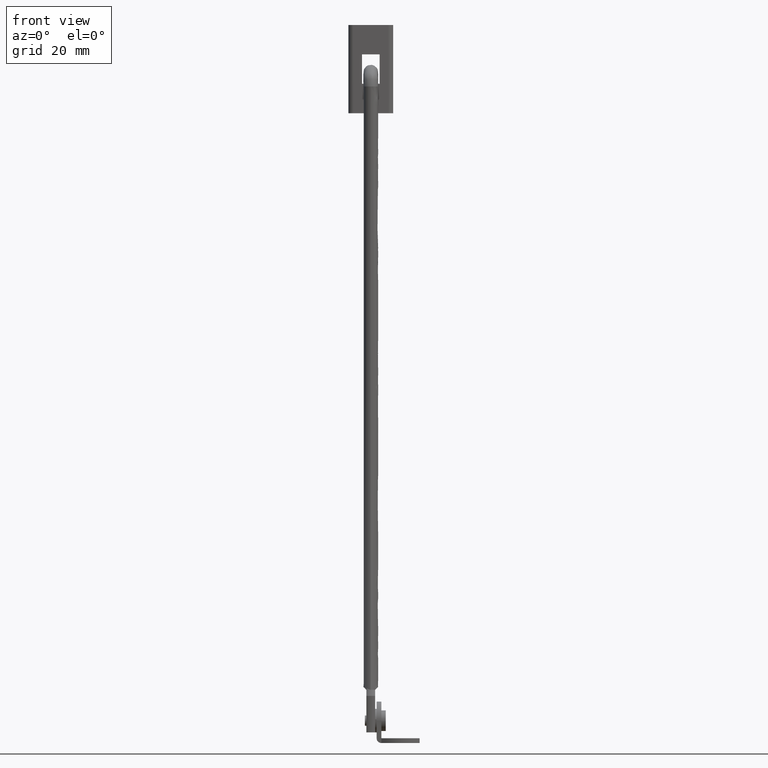
[diagram: clean part render]
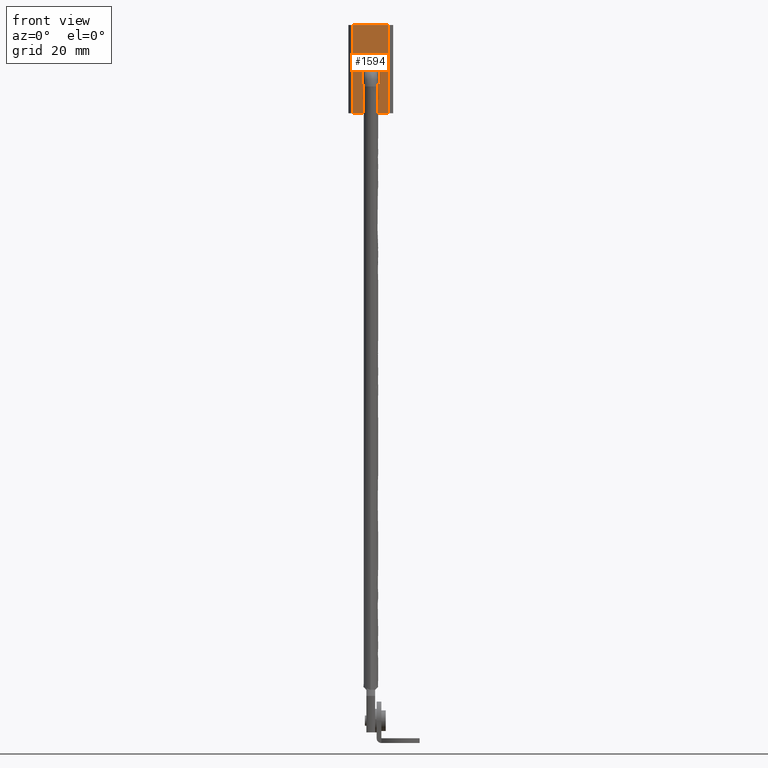
[diagram: same view with one face highlighted and labeled with its STEP entity id]
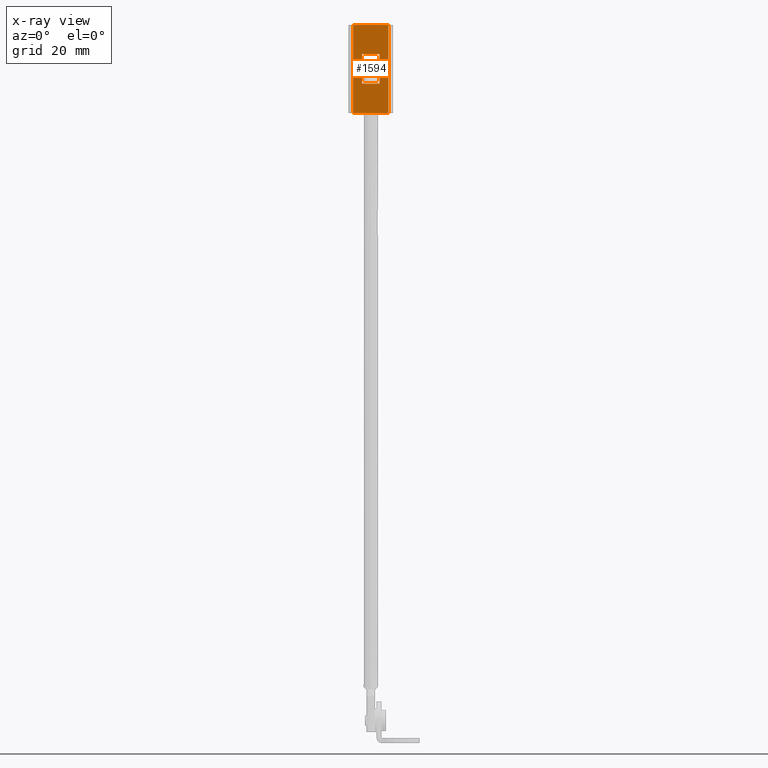
[diagram: x-ray of the same camera — body ghosted, the highlighted face saturated]
A machine part, front view. The second image highlights one B-rep face of the part: STEP entity #1594.
The next image is the same camera in x-ray: the body ghosted, the highlighted face saturated — about 0% of this face is hidden behind the body in this view.
In plain terms, the highlighted face is a freeform B-spline surface patch.
Its self-contained STEP definition (entity closure, byte-faithful):
#1154=CARTESIAN_POINT('',(-13.099990999999800,2.499999999999885,236.662185999999990));
#1155=VERTEX_POINT('',#1154);
#1156=CARTESIAN_POINT('',(-13.099990999999800,2.499999999999945,226.662185999999990));
#1157=VERTEX_POINT('',#1156);
#1158=CARTESIAN_POINT('',(-13.099990999999800,2.499999999999885,236.662185999999990));
#1159=CARTESIAN_POINT('',(-13.099990999999800,2.499999999999945,226.662185999999990));
#1160=QUASI_UNIFORM_CURVE('',1,(#1158,#1159),.UNSPECIFIED.,.F.,.U.);
#1161=EDGE_CURVE('',#1155,#1157,#1160,.T.);
#1190=CARTESIAN_POINT('',(-7.099990999999790,2.499999999999945,236.662185999999990));
#1191=VERTEX_POINT('',#1190);
#1192=CARTESIAN_POINT('',(-7.099990999999790,2.499999999999945,236.662185999999990));
#1193=CARTESIAN_POINT('',(-13.099990999999800,2.499999999999885,236.662185999999990));
#1194=QUASI_UNIFORM_CURVE('',1,(#1192,#1193),.UNSPECIFIED.,.F.,.U.);
#1195=EDGE_CURVE('',#1191,#1155,#1194,.T.);
#1218=CARTESIAN_POINT('',(-7.099990999999790,2.499999999999945,226.662185999999990));
#1219=VERTEX_POINT('',#1218);
#1220=CARTESIAN_POINT('',(-7.099990999999790,2.499999999999945,226.662185999999990));
#1221=CARTESIAN_POINT('',(-7.099990999999790,2.499999999999945,236.662185999999990));
#1222=QUASI_UNIFORM_CURVE('',1,(#1220,#1221),.UNSPECIFIED.,.F.,.U.);
#1223=EDGE_CURVE('',#1219,#1191,#1222,.T.);
#1246=CARTESIAN_POINT('',(-13.099990999999800,2.499999999999945,226.662185999999990));
#1247=CARTESIAN_POINT('',(-7.099990999999790,2.499999999999945,226.662185999999990));
#1248=QUASI_UNIFORM_CURVE('',1,(#1246,#1247),.UNSPECIFIED.,.F.,.U.);
#1249=EDGE_CURVE('',#1157,#1219,#1248,.T.);
#1277=CARTESIAN_POINT('',(-4.099999999999885,2.499999999999885,216.662185999999990));
#1278=VERTEX_POINT('',#1277);
#1299=CARTESIAN_POINT('',(-4.099999999999885,2.499999999999885,246.662185999999990));
#1300=VERTEX_POINT('',#1299);
#1314=CARTESIAN_POINT('',(-4.099999999999885,2.499999999999885,216.662185999999990));
#1315=CARTESIAN_POINT('',(-4.099999999999885,2.499999999999885,246.662185999999990));
#1316=QUASI_UNIFORM_CURVE('',1,(#1314,#1315),.UNSPECIFIED.,.F.,.U.);
#1317=EDGE_CURVE('',#1278,#1300,#1316,.T.);
#1336=CARTESIAN_POINT('',(-16.099996999999899,2.499999999999885,216.662185999999990));
#1337=VERTEX_POINT('',#1336);
#1353=CARTESIAN_POINT('',(-16.099996999999899,2.499999999999885,246.662185999999990));
#1354=VERTEX_POINT('',#1353);
#1355=CARTESIAN_POINT('',(-16.099996999999899,2.499999999999885,246.662185999999990));
#1356=CARTESIAN_POINT('',(-16.099996999999899,2.499999999999885,216.662185999999990));
#1357=QUASI_UNIFORM_CURVE('',1,(#1355,#1356),.UNSPECIFIED.,.F.,.U.);
#1358=EDGE_CURVE('',#1354,#1337,#1357,.T.);
#1396=CARTESIAN_POINT('',(-16.099996999999899,2.499999999999885,246.662185999999990));
#1397=CARTESIAN_POINT('',(-4.099999999999885,2.499999999999885,246.662185999999990));
#1398=QUASI_UNIFORM_CURVE('',1,(#1396,#1397),.UNSPECIFIED.,.F.,.U.);
#1399=EDGE_CURVE('',#1354,#1300,#1398,.T.);
#1450=CARTESIAN_POINT('',(-16.099996999999899,2.499999999999885,216.662185999999990));
#1451=CARTESIAN_POINT('',(-4.099999999999885,2.499999999999885,216.662185999999990));
#1452=QUASI_UNIFORM_CURVE('',1,(#1450,#1451),.UNSPECIFIED.,.F.,.U.);
#1453=EDGE_CURVE('',#1337,#1278,#1452,.T.);
#1577=CARTESIAN_POINT('',(-16.699396376302040,2.499999999999885,248.160685660235710));
#1578=CARTESIAN_POINT('',(-16.699396376302040,2.499999999999885,215.163685266880800));
#1579=CARTESIAN_POINT('',(-3.500599872679415,2.499999999999885,248.160685660235710));
#1580=CARTESIAN_POINT('',(-3.500599872679415,2.499999999999885,215.163685266880800));
#1581=B_SPLINE_SURFACE_WITH_KNOTS('',1,1,((#1577,#1579),(#1578,#1580)),.UNSPECIFIED.,.F.,.F.,.U.,(2,2),(2,2),(0.0,32.997000393354938),(0.0,13.198796503622621),.UNSPECIFIED.);
#1582=ORIENTED_EDGE('',*,*,#1399,.F.);
#1583=ORIENTED_EDGE('',*,*,#1358,.T.);
#1584=ORIENTED_EDGE('',*,*,#1453,.T.);
#1585=ORIENTED_EDGE('',*,*,#1317,.T.);
#1586=EDGE_LOOP('',(#1582,#1583,#1584,#1585));
#1587=FACE_OUTER_BOUND('',#1586,.T.);
#1588=ORIENTED_EDGE('',*,*,#1249,.F.);
#1589=ORIENTED_EDGE('',*,*,#1161,.F.);
#1590=ORIENTED_EDGE('',*,*,#1195,.F.);
#1591=ORIENTED_EDGE('',*,*,#1223,.F.);
#1592=EDGE_LOOP('',(#1588,#1589,#1590,#1591));
#1593=FACE_BOUND('',#1592,.T.);
#1594=ADVANCED_FACE('',(#1587,#1593),#1581,.T.);